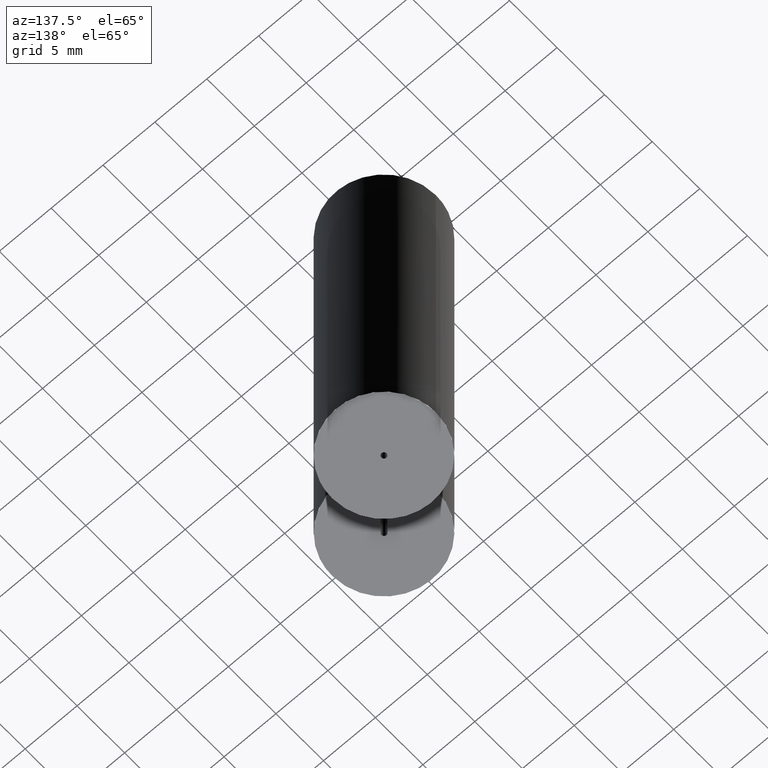
[diagram: clean part render]
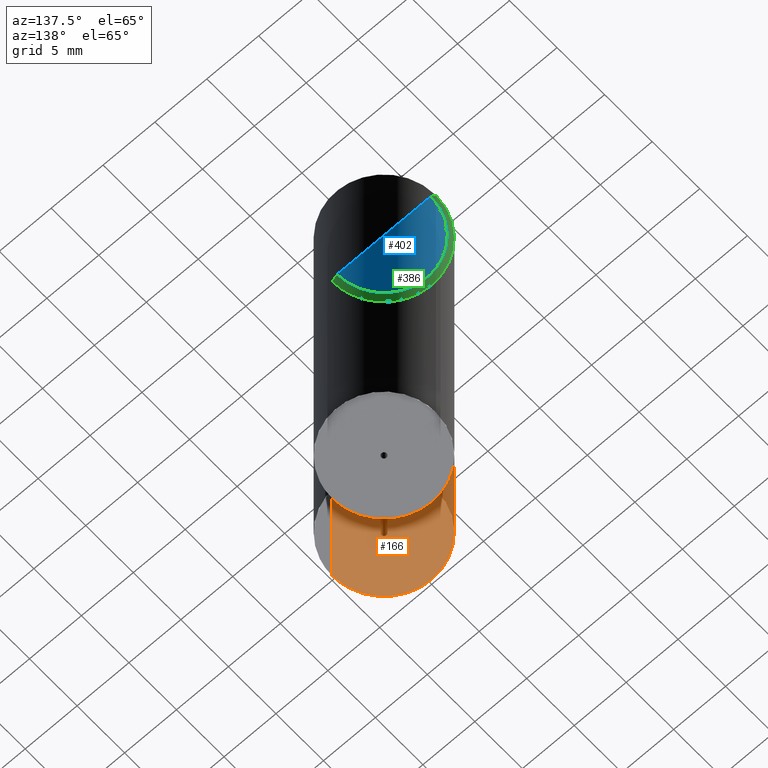
[diagram: same view with three faces highlighted in distinct colors, each labeled with its STEP entity id]
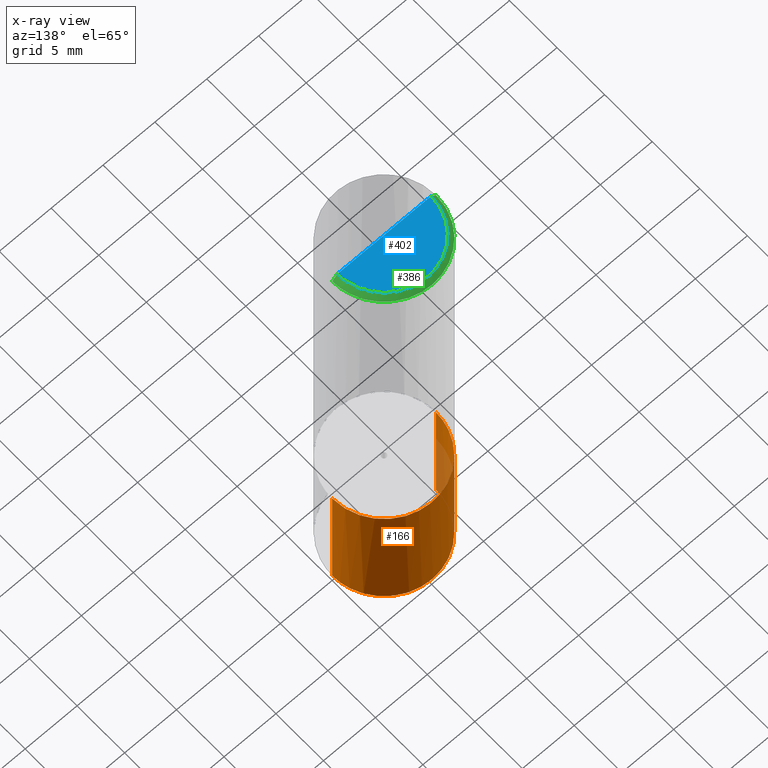
[diagram: x-ray of the same camera — body ghosted, the three highlighted faces saturated]
A machine part, auxiliary view with three faces highlighted in distinct colors.
The next image is the same camera in x-ray (body ghosted, the three faces saturated) — at least one of them is partly hidden behind the body in this view.
Their STEP definitions:

[orange] entity #166 — the highlighted face is a freeform B-spline surface patch.
#76=CARTESIAN_POINT('',(5.0,0.0,-13.0));
#77=CARTESIAN_POINT('',(5.0,5.0,-13.0));
#78=CARTESIAN_POINT('',(0.0,5.0,-13.0));
#79=CARTESIAN_POINT('',(-5.0,5.0,-13.0));
#80=CARTESIAN_POINT('',(-5.0,0.0,-13.0));
#81=CARTESIAN_POINT('',(5.0,0.0,0.0));
#82=CARTESIAN_POINT('',(5.0,5.0,0.0));
#83=CARTESIAN_POINT('',(0.0,5.0,0.0));
#84=CARTESIAN_POINT('',(-5.0,5.0,0.0));
#85=CARTESIAN_POINT('',(-5.0,0.0,0.0));
#147=(
BOUNDED_SURFACE()
B_SPLINE_SURFACE(1,2,(
(#76,#77,#78,#79,#80),
(#81,#82,#83,#84,#85)
), .UNSPECIFIED.,.F.,.F.,.F.)
B_SPLINE_SURFACE_WITH_KNOTS((2,2),(3,2,3),(
0.0,1.0),(
0.0,0.5,1.0), .UNSPECIFIED.)
GEOMETRIC_REPRESENTATION_ITEM()
RATIONAL_B_SPLINE_SURFACE(((1.0,0.707106781187,1.0,0.707106781187,1.0),
(1.0,0.707106781187,1.0,0.707106781187,1.0)
))
REPRESENTATION_ITEM('')
SURFACE()
);
#148=(
BOUNDED_CURVE()
B_SPLINE_CURVE(2,(#80,#79,#78,#77,#76),.UNSPECIFIED.,.F.,.F.)
B_SPLINE_CURVE_WITH_KNOTS((3,2,3),
(0.0,0.5,1.0),.UNSPECIFIED.)
CURVE()
GEOMETRIC_REPRESENTATION_ITEM()
RATIONAL_B_SPLINE_CURVE((1.0,0.707106781187,1.0,0.707106781187,1.0))
REPRESENTATION_ITEM('')
);
#149=(
BOUNDED_CURVE()
B_SPLINE_CURVE(1,(#76,#81),.UNSPECIFIED.,.F.,.F.)
B_SPLINE_CURVE_WITH_KNOTS((2,2),
(0.0,1.0),.UNSPECIFIED.)
CURVE()
GEOMETRIC_REPRESENTATION_ITEM()
RATIONAL_B_SPLINE_CURVE((1.0,1.0))
REPRESENTATION_ITEM('')
);
#150=(
BOUNDED_CURVE()
B_SPLINE_CURVE(2,(#81,#82,#83,#84,#85),.UNSPECIFIED.,.F.,.F.)
B_SPLINE_CURVE_WITH_KNOTS((3,2,3),
(0.0,0.5,1.0),.UNSPECIFIED.)
CURVE()
GEOMETRIC_REPRESENTATION_ITEM()
RATIONAL_B_SPLINE_CURVE((1.0,0.707106781187,1.0,0.707106781187,1.0))
REPRESENTATION_ITEM('')
);
#151=(
BOUNDED_CURVE()
B_SPLINE_CURVE(1,(#85,#80),.UNSPECIFIED.,.F.,.F.)
B_SPLINE_CURVE_WITH_KNOTS((2,2),
(0.0,1.0),.UNSPECIFIED.)
CURVE()
GEOMETRIC_REPRESENTATION_ITEM()
RATIONAL_B_SPLINE_CURVE((1.0,1.0))
REPRESENTATION_ITEM('')
);
#152=VERTEX_POINT('',#76);
#153=VERTEX_POINT('',#80);
#154=VERTEX_POINT('',#81);
#155=VERTEX_POINT('',#85);
#156=EDGE_CURVE('',#153,#152,#148,.T.);
#157=EDGE_CURVE('',#152,#154,#149,.T.);
#158=EDGE_CURVE('',#154,#155,#150,.T.);
#159=EDGE_CURVE('',#155,#153,#151,.T.);
#160=ORIENTED_EDGE('',*,*,#156,.T.);
#161=ORIENTED_EDGE('',*,*,#157,.T.);
#162=ORIENTED_EDGE('',*,*,#158,.T.);
#163=ORIENTED_EDGE('',*,*,#159,.T.);
#164=EDGE_LOOP('',(#160,#161,#162,#163));
#165=FACE_OUTER_BOUND('',#164,.T.);
#166=ADVANCED_FACE('',(#165),#147,.T.);

[blue] entity #402 — the highlighted face is a freeform B-spline surface patch.
#109=CARTESIAN_POINT('',(4.5,0.0,37.0));
#110=CARTESIAN_POINT('',(4.5,4.5,37.0));
#111=CARTESIAN_POINT('',(0.0,4.5,37.0));
#112=CARTESIAN_POINT('',(-4.5,4.5,37.0));
#113=CARTESIAN_POINT('',(-4.5,0.0,37.0));
#114=CARTESIAN_POINT('',(0.0,0.0,37.0));
#387=(
BOUNDED_SURFACE()
B_SPLINE_SURFACE(1,2,(
(#109,#110,#111,#112,#113),
(#114,#114,#114,#114,#114)
), .UNSPECIFIED.,.F.,.F.,.F.)
B_SPLINE_SURFACE_WITH_KNOTS((2,2),(3,2,3),(
0.0,1.0),(
0.0,0.5,1.0), .UNSPECIFIED.)
GEOMETRIC_REPRESENTATION_ITEM()
RATIONAL_B_SPLINE_SURFACE(((1.0,0.707106781187,1.0,0.707106781187,1.0),
(1.0,0.707106781187,1.0,0.707106781187,1.0)
))
REPRESENTATION_ITEM('')
SURFACE()
);
#388=(
BOUNDED_CURVE()
B_SPLINE_CURVE(2,(#113,#112,#111,#110,#109),.UNSPECIFIED.,.F.,.F.)
B_SPLINE_CURVE_WITH_KNOTS((3,2,3),
(0.0,0.5,1.0),.UNSPECIFIED.)
CURVE()
GEOMETRIC_REPRESENTATION_ITEM()
RATIONAL_B_SPLINE_CURVE((1.0,0.707106781187,1.0,0.707106781187,1.0))
REPRESENTATION_ITEM('')
);
#389=(
BOUNDED_CURVE()
B_SPLINE_CURVE(1,(#109,#114),.UNSPECIFIED.,.F.,.F.)
B_SPLINE_CURVE_WITH_KNOTS((2,2),
(0.0,1.0),.UNSPECIFIED.)
CURVE()
GEOMETRIC_REPRESENTATION_ITEM()
RATIONAL_B_SPLINE_CURVE((1.0,1.0))
REPRESENTATION_ITEM('')
);
#390=(
BOUNDED_CURVE()
B_SPLINE_CURVE(1,(#114,#113),.UNSPECIFIED.,.F.,.F.)
B_SPLINE_CURVE_WITH_KNOTS((2,2),
(0.0,1.0),.UNSPECIFIED.)
CURVE()
GEOMETRIC_REPRESENTATION_ITEM()
RATIONAL_B_SPLINE_CURVE((1.0,1.0))
REPRESENTATION_ITEM('')
);
#391=VERTEX_POINT('',#109);
#392=VERTEX_POINT('',#113);
#393=VERTEX_POINT('',#114);
#394=EDGE_CURVE('',#392,#391,#388,.T.);
#395=EDGE_CURVE('',#391,#393,#389,.T.);
#396=EDGE_CURVE('',#393,#392,#390,.T.);
#397=ORIENTED_EDGE('',*,*,#394,.T.);
#398=ORIENTED_EDGE('',*,*,#395,.T.);
#399=ORIENTED_EDGE('',*,*,#396,.T.);
#400=EDGE_LOOP('',(#397,#398,#399));
#401=FACE_OUTER_BOUND('',#400,.T.);
#402=ADVANCED_FACE('',(#401),#387,.T.);

[green] entity #386 — the highlighted face is a freeform B-spline surface patch.
#104=CARTESIAN_POINT('',(5.0,0.0,36.5));
#105=CARTESIAN_POINT('',(5.0,5.0,36.5));
#106=CARTESIAN_POINT('',(0.0,5.0,36.5));
#107=CARTESIAN_POINT('',(-5.0,5.0,36.5));
#108=CARTESIAN_POINT('',(-5.0,0.0,36.5));
#109=CARTESIAN_POINT('',(4.5,0.0,37.0));
#110=CARTESIAN_POINT('',(4.5,4.5,37.0));
#111=CARTESIAN_POINT('',(0.0,4.5,37.0));
#112=CARTESIAN_POINT('',(-4.5,4.5,37.0));
#113=CARTESIAN_POINT('',(-4.5,0.0,37.0));
#367=(
BOUNDED_SURFACE()
B_SPLINE_SURFACE(1,2,(
(#104,#105,#106,#107,#108),
(#109,#110,#111,#112,#113)
), .UNSPECIFIED.,.F.,.F.,.F.)
B_SPLINE_SURFACE_WITH_KNOTS((2,2),(3,2,3),(
0.0,1.0),(
0.0,0.5,1.0), .UNSPECIFIED.)
GEOMETRIC_REPRESENTATION_ITEM()
RATIONAL_B_SPLINE_SURFACE(((1.0,0.707106781187,1.0,0.707106781187,1.0),
(1.0,0.707106781187,1.0,0.707106781187,1.0)
))
REPRESENTATION_ITEM('')
SURFACE()
);
#368=(
BOUNDED_CURVE()
B_SPLINE_CURVE(2,(#108,#107,#106,#105,#104),.UNSPECIFIED.,.F.,.F.)
B_SPLINE_CURVE_WITH_KNOTS((3,2,3),
(0.0,0.5,1.0),.UNSPECIFIED.)
CURVE()
GEOMETRIC_REPRESENTATION_ITEM()
RATIONAL_B_SPLINE_CURVE((1.0,0.707106781187,1.0,0.707106781187,1.0))
REPRESENTATION_ITEM('')
);
#369=(
BOUNDED_CURVE()
B_SPLINE_CURVE(1,(#104,#109),.UNSPECIFIED.,.F.,.F.)
B_SPLINE_CURVE_WITH_KNOTS((2,2),
(0.0,1.0),.UNSPECIFIED.)
CURVE()
GEOMETRIC_REPRESENTATION_ITEM()
RATIONAL_B_SPLINE_CURVE((1.0,1.0))
REPRESENTATION_ITEM('')
);
#370=(
BOUNDED_CURVE()
B_SPLINE_CURVE(2,(#109,#110,#111,#112,#113),.UNSPECIFIED.,.F.,.F.)
B_SPLINE_CURVE_WITH_KNOTS((3,2,3),
(0.0,0.5,1.0),.UNSPECIFIED.)
CURVE()
GEOMETRIC_REPRESENTATION_ITEM()
RATIONAL_B_SPLINE_CURVE((1.0,0.707106781187,1.0,0.707106781187,1.0))
REPRESENTATION_ITEM('')
);
#371=(
BOUNDED_CURVE()
B_SPLINE_CURVE(1,(#113,#108),.UNSPECIFIED.,.F.,.F.)
B_SPLINE_CURVE_WITH_KNOTS((2,2),
(0.0,1.0),.UNSPECIFIED.)
CURVE()
GEOMETRIC_REPRESENTATION_ITEM()
RATIONAL_B_SPLINE_CURVE((1.0,1.0))
REPRESENTATION_ITEM('')
);
#372=VERTEX_POINT('',#104);
#373=VERTEX_POINT('',#108);
#374=VERTEX_POINT('',#109);
#375=VERTEX_POINT('',#113);
#376=EDGE_CURVE('',#373,#372,#368,.T.);
#377=EDGE_CURVE('',#372,#374,#369,.T.);
#378=EDGE_CURVE('',#374,#375,#370,.T.);
#379=EDGE_CURVE('',#375,#373,#371,.T.);
#380=ORIENTED_EDGE('',*,*,#376,.T.);
#381=ORIENTED_EDGE('',*,*,#377,.T.);
#382=ORIENTED_EDGE('',*,*,#378,.T.);
#383=ORIENTED_EDGE('',*,*,#379,.T.);
#384=EDGE_LOOP('',(#380,#381,#382,#383));
#385=FACE_OUTER_BOUND('',#384,.T.);
#386=ADVANCED_FACE('',(#385),#367,.T.);